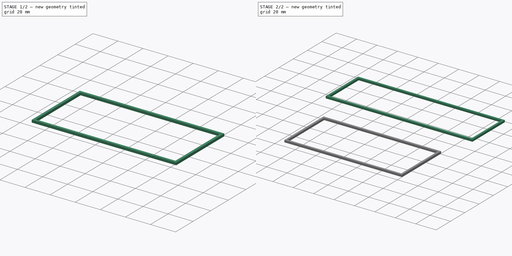
[diagram: build sequence overview — one tinted view per stage of 2, left to right]
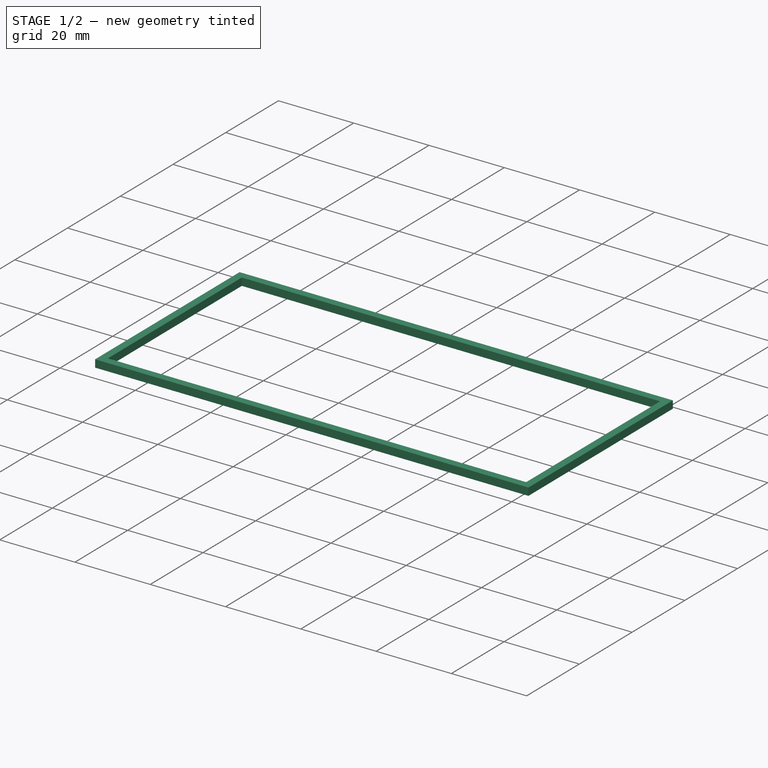
[diagram: stage 1 of 2 — iso view after this stage's code; geometry added in this stage tinted green]
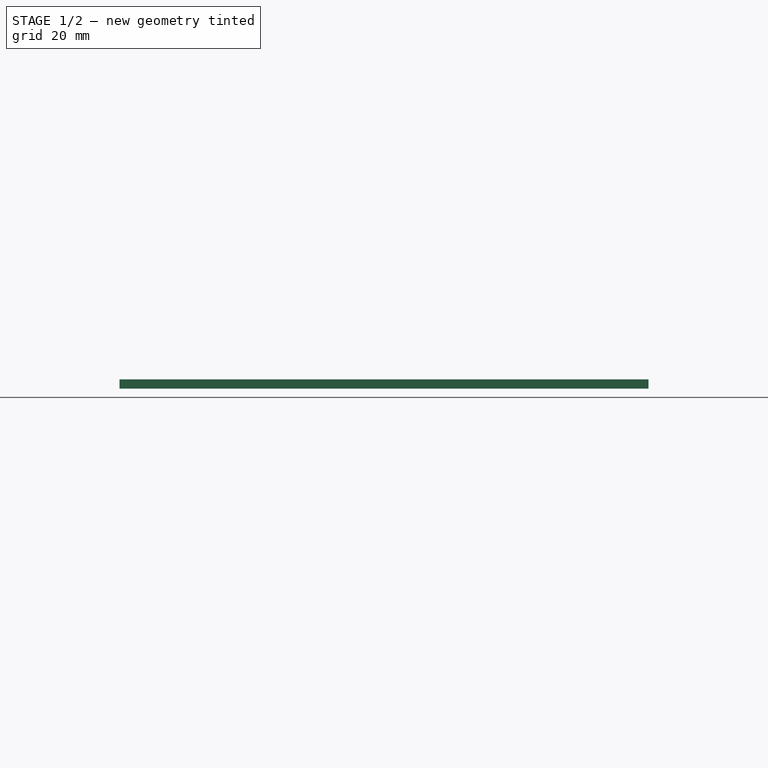
[diagram: stage 1 of 2 — front view after this stage's code; geometry added in this stage tinted green]
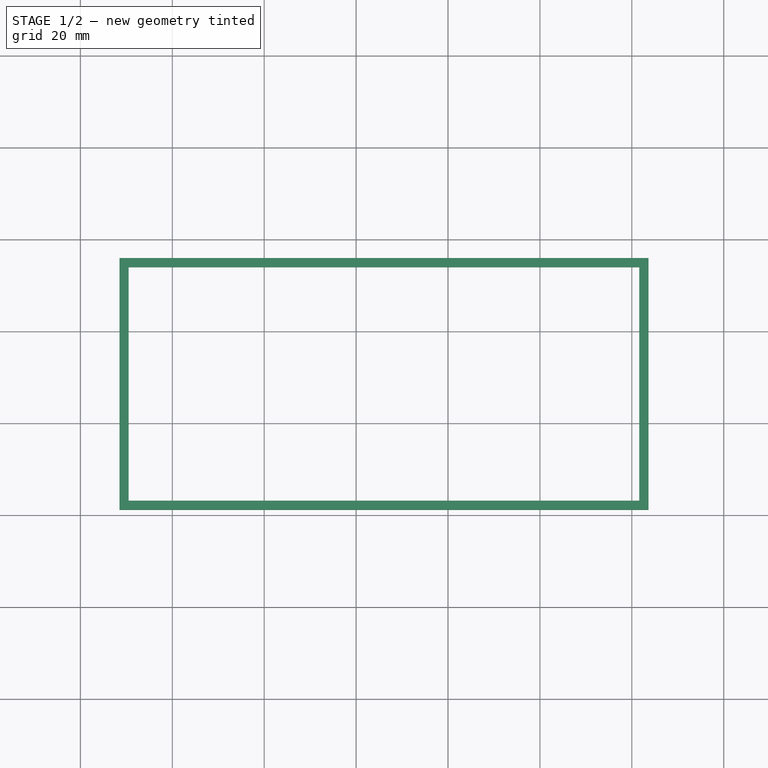
[diagram: stage 1 of 2 — top view after this stage's code; geometry added in this stage tinted green]
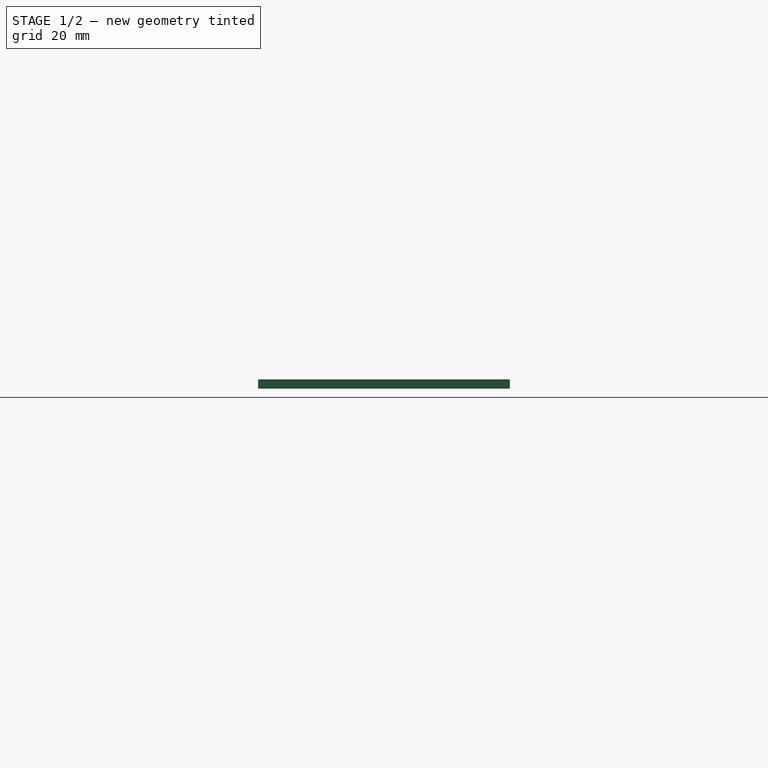
[diagram: stage 1 of 2 — right view after this stage's code; geometry added in this stage tinted green]
FCSTD DOCUMENT  (FreeCAD 0.18R16146 (Git))
Label: test-fit
License: All rights reserved
LicenseURL: http://en.wikipedia.org/wiki/All_rights_reserved
objects: Sketcher::SketchObject×2, PartDesign::Pad×2, PartDesign::Body×2
note: 8 computed .brp shape members not serialized (recipe doc carries the construction recipe); baked Part::Feature solids carry a one-line shape summary decoded from their .brp

FEATURE [PartDesign::Body] Body  label="Top"
  Group = -> [Sketch,Pad]
  Origin = -> Origin
  Tip = -> Pad
FEATURE [PartDesign::Pad] Pad001
  Length = 2
  Length2 = 100
  Profile = -> Sketch001
  Type = 0
FEATURE [PartDesign::Body] Body001  label="Bottom"
  Group = -> [Sketch001,Pad001]
  Origin = -> Origin001
  Tip = -> Pad001
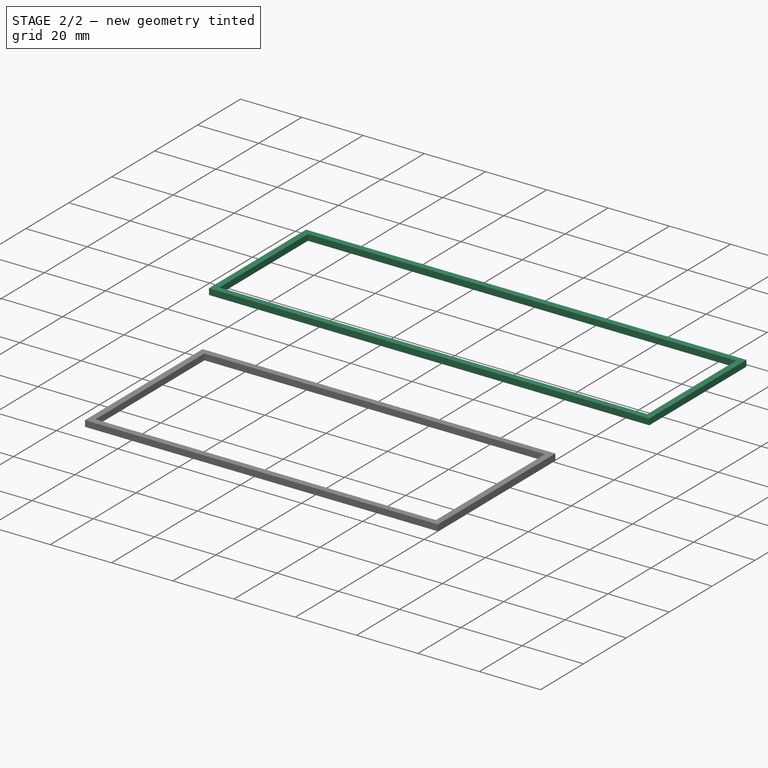
[diagram: stage 2 of 2 — iso view after this stage's code; geometry added in this stage tinted green]
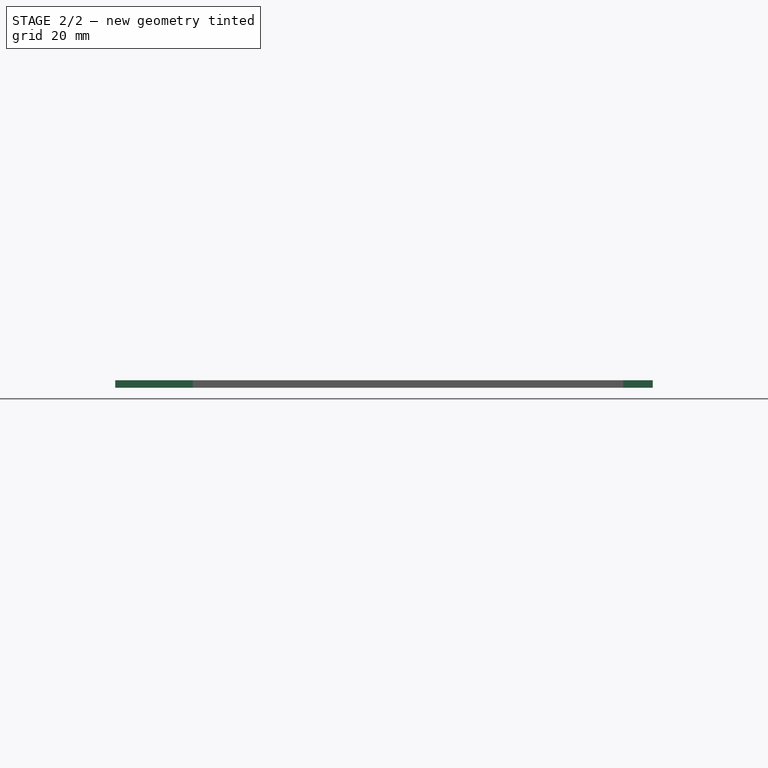
[diagram: stage 2 of 2 — front view after this stage's code; geometry added in this stage tinted green]
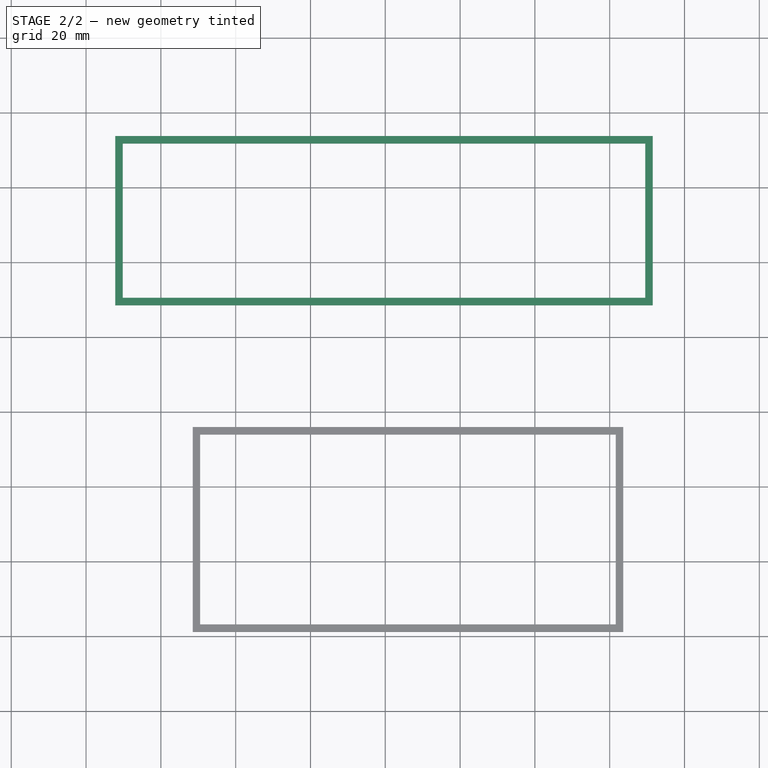
[diagram: stage 2 of 2 — top view after this stage's code; geometry added in this stage tinted green]
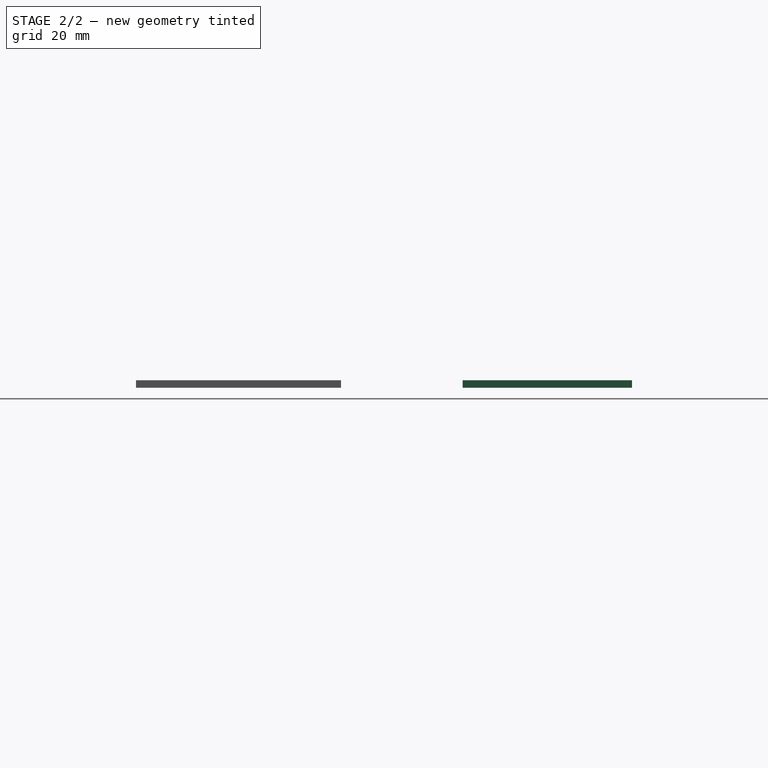
[diagram: stage 2 of 2 — right view after this stage's code; geometry added in this stage tinted green]
FEATURE [Sketcher::SketchObject] Sketch
  MapMode = 5
  Support = -> [XY_Plane]
  sketch-geometry (8):
    g0: LineSegment StartX=-52.1939 StartY=13.7938 StartZ=0 EndX=91.5061 EndY=13.7938 EndZ=0
    g1: LineSegment StartX=91.5061 StartY=13.7938 StartZ=0 EndX=91.5061 EndY=-31.4762 EndZ=0
    g2: LineSegment StartX=91.5061 StartY=-31.4762 StartZ=0 EndX=-52.1939 EndY=-31.4762 EndZ=0
    g3: LineSegment StartX=-52.1939 StartY=-31.4762 StartZ=0 EndX=-52.1939 EndY=13.7938 EndZ=0
    g4: LineSegment StartX=-50.1939 StartY=11.7938 StartZ=0 EndX=89.5061 EndY=11.7938 EndZ=0
    g5: LineSegment StartX=89.5061 StartY=11.7938 StartZ=0 EndX=89.5061 EndY=-29.4762 EndZ=0
    g6: LineSegment StartX=89.5061 StartY=-29.4762 StartZ=0 EndX=-50.1939 EndY=-29.4762 EndZ=0
    g7: LineSegment StartX=-50.1939 StartY=-29.4762 StartZ=0 EndX=-50.1939 EndY=11.7938 EndZ=0
  constraints (22):
    c: Coincident(g0,g1)
    c: Coincident(g1,g2)
    c: Coincident(g2,g3)
    c: Coincident(g3,g0)
    c: Horizontal(g0)
    c: Horizontal(g2)
    c: Vertical(g1)
    c: Vertical(g3)
    c: Coincident(g4,g5)
    c: Coincident(g5,g6)
    c: Coincident(g6,g7)
    c: Coincident(g7,g4)
    c: Horizontal(g4)
    c: Horizontal(g6)
    c: Vertical(g5)
    c: Vertical(g7)
    c: DistanceX(g4,g4) = 139.7
    c: DistanceY(g6,g4) = 41.27
    c: DistanceY(g4,g0) = 2
    c: DistanceY(g2,g6) = 2
    c: DistanceX(g2,g6) = 2
    c: DistanceX(g4,g0) = 2
FEATURE [Sketcher::SketchObject] Sketch001
  MapMode = 5
  Support = -> [XY_Plane002]
  sketch-geometry (8):
    g0: LineSegment StartX=-31.4901 StartY=-64.0139 StartZ=0 EndX=83.6299 EndY=-64.0139 EndZ=0
    g1: LineSegment StartX=83.6299 StartY=-64.0139 StartZ=0 EndX=83.6299 EndY=-118.814 EndZ=0
    g2: LineSegment StartX=83.6299 StartY=-118.814 StartZ=0 EndX=-31.4901 EndY=-118.814 EndZ=0
    g3: LineSegment StartX=-31.4901 StartY=-118.814 StartZ=0 EndX=-31.4901 EndY=-64.0139 EndZ=0
    g4: LineSegment StartX=-29.4901 StartY=-66.0139 StartZ=0 EndX=81.6299 EndY=-66.0139 EndZ=0
    g5: LineSegment StartX=81.6299 StartY=-66.0139 StartZ=0 EndX=81.6299 EndY=-116.814 EndZ=0
    g6: LineSegment StartX=81.6299 StartY=-116.814 StartZ=0 EndX=-29.4901 EndY=-116.814 EndZ=0
    g7: LineSegment StartX=-29.4901 StartY=-116.814 StartZ=0 EndX=-29.4901 EndY=-66.0139 EndZ=0
  constraints (22):
    c: Coincident(g0,g1)
    c: Coincident(g1,g2)
    c: Coincident(g2,g3)
    c: Coincident(g3,g0)
    c: Horizontal(g0)
    c: Horizontal(g2)
    c: Vertical(g1)
    c: Vertical(g3)
    c: Coincident(g4,g5)
    c: Coincident(g5,g6)
    c: Coincident(g6,g7)
    c: Coincident(g7,g4)
    c: Horizontal(g4)
    c: Horizontal(g6)
    c: Vertical(g5)
    c: Vertical(g7)
    c: DistanceX(g2,g6) = 2
    c: DistanceX(g5,g1) = 2
    c: DistanceY(g2,g6) = 2
    c: DistanceY(g4,g0) = 2
    c: DistanceY(g6,g4) = 50.8
    c: DistanceX(g4,g4) = 111.12
FEATURE [PartDesign::Pad] Pad
  Length = 2
  Length2 = 100
  Profile = -> Sketch
  Type = 0
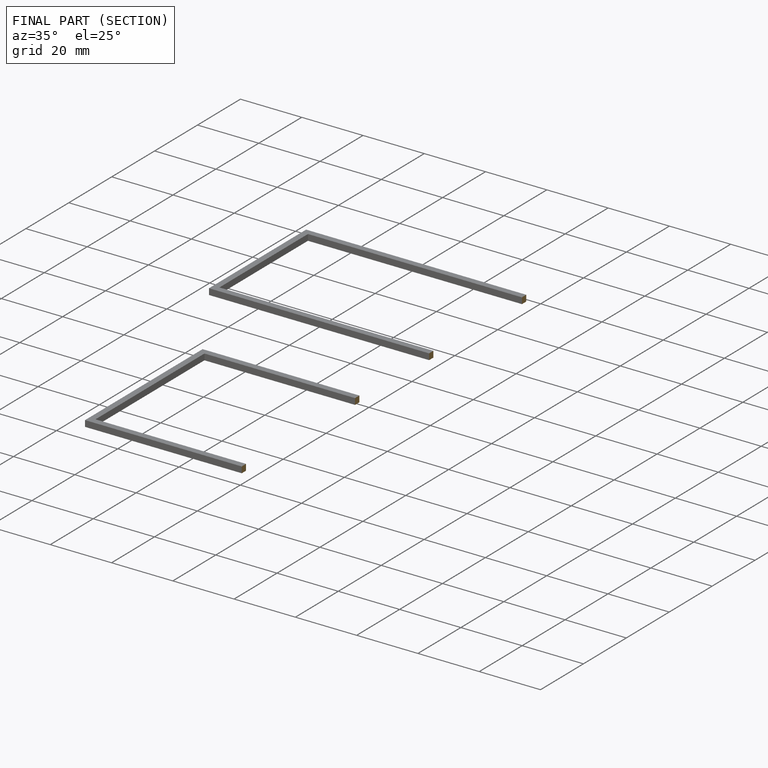
[diagram: finished part — half-section view (interior)]
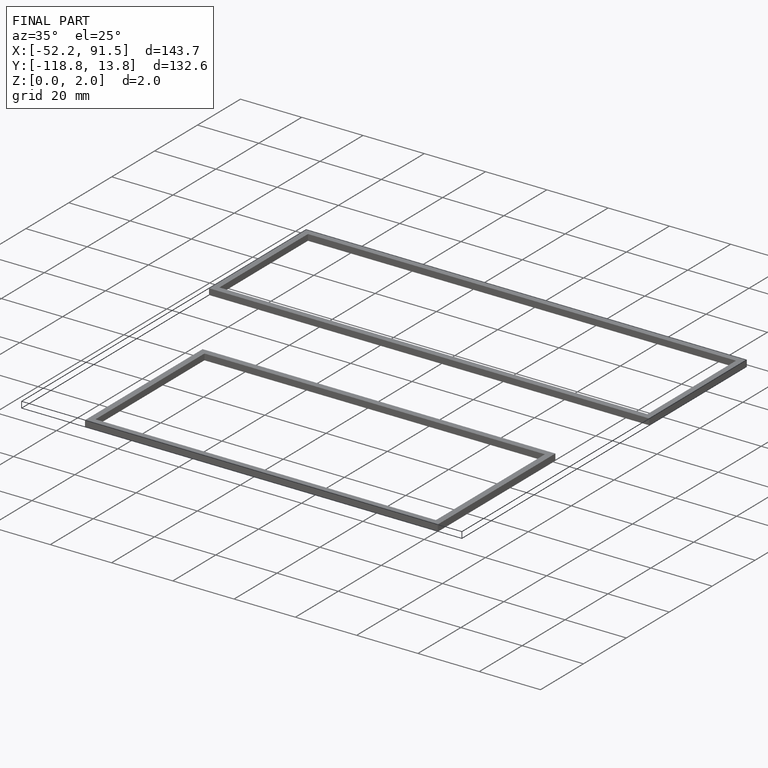
[diagram: finished part — iso view with bounding-box wireframe]
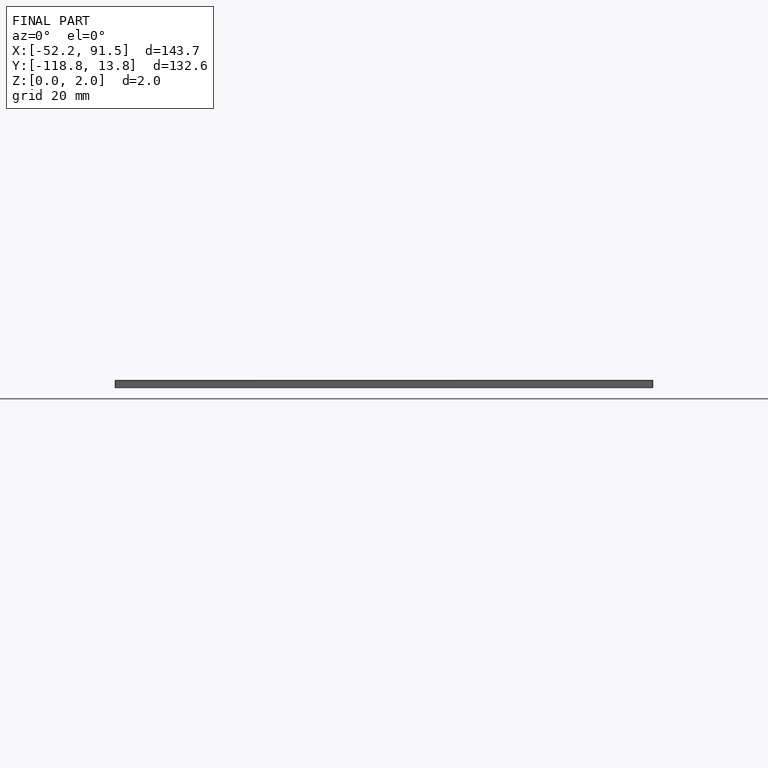
[diagram: finished part — front view with bounding-box wireframe]
